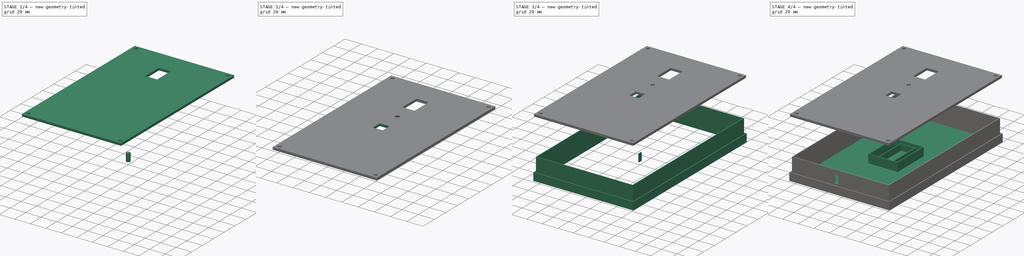
[diagram: build sequence overview — one tinted view per stage of 4, left to right]
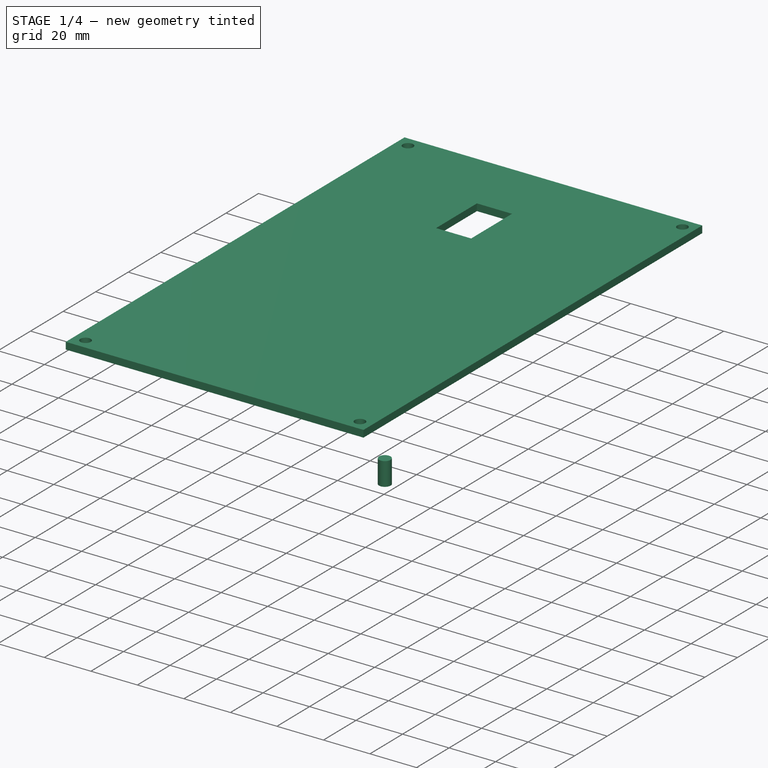
[diagram: stage 1 of 4 — iso view after this stage's code; geometry added in this stage tinted green]
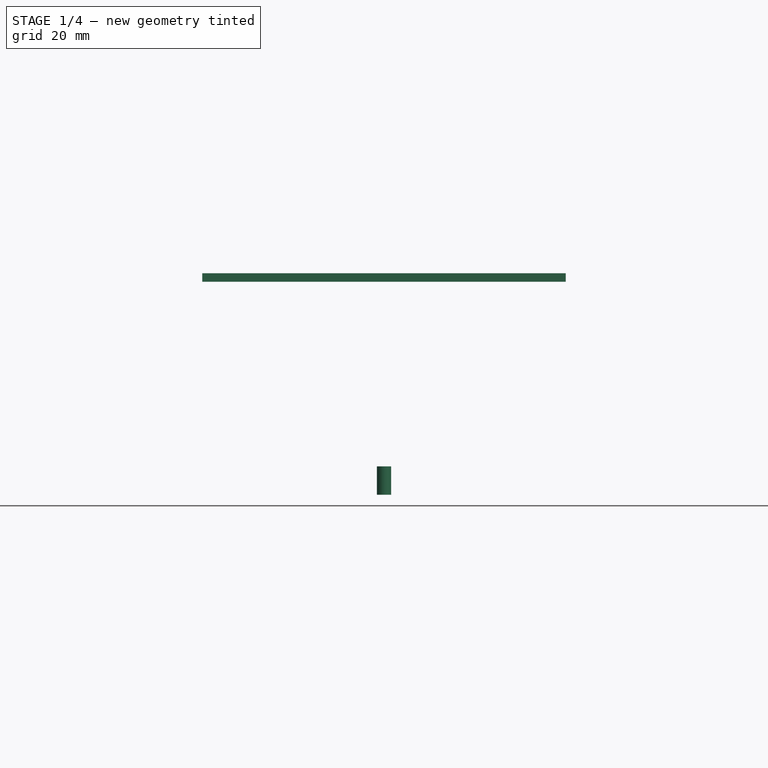
[diagram: stage 1 of 4 — front view after this stage's code; geometry added in this stage tinted green]
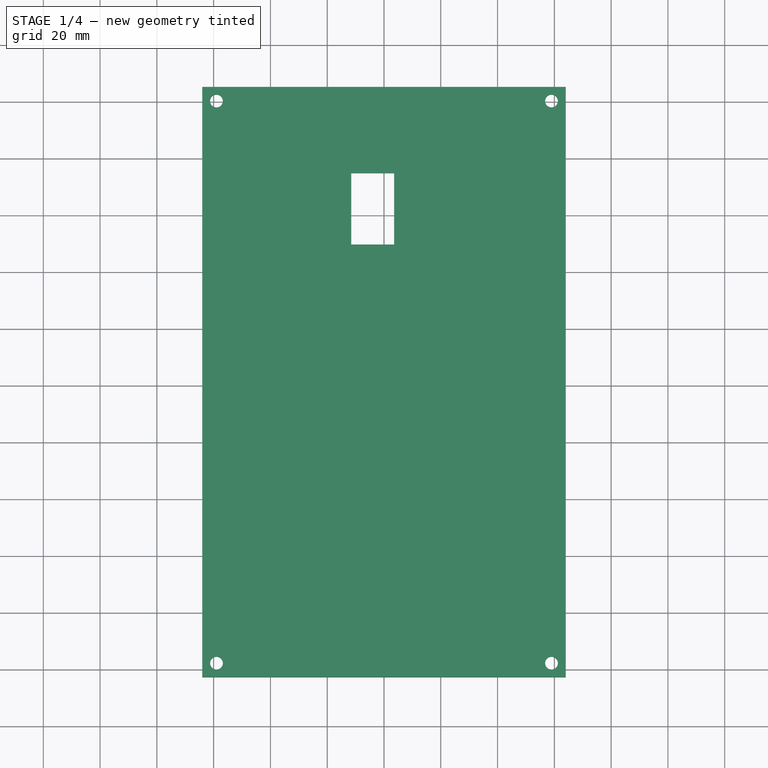
[diagram: stage 1 of 4 — top view after this stage's code; geometry added in this stage tinted green]
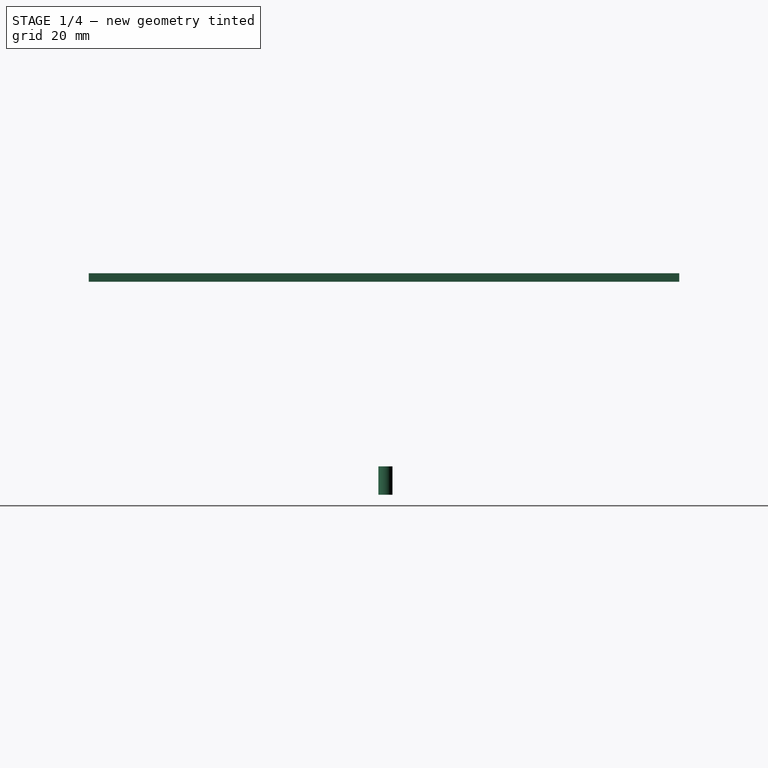
[diagram: stage 1 of 4 — right view after this stage's code; geometry added in this stage tinted green]
FCSTD DOCUMENT  (FreeCAD 0.19R24291 (Git))
Label: hw-61037992
License: All rights reserved
LicenseURL: http://en.wikipedia.org/wiki/All_rights_reserved
objects: PartDesign::Body×12, Sketcher::SketchObject×11, PartDesign::Pad×10, Part::Cut×4
note: 47 computed .brp shape members not serialized (recipe doc carries the construction recipe); baked Part::Feature solids carry a one-line shape summary decoded from their .brp

FEATURE [PartDesign::Body] Body008  label="box lid"
  Group = -> [Sketch007,Pad006]
  Origin = -> Origin008
  Placement = pos=(0,0,65) rot=(0,0,1;0rad)
  Tip = -> Pad006
FEATURE [Sketcher::SketchObject] Sketch008
  FullyConstrained = false
  MapMode = 5
  Support = -> [XY_Plane009]
  sketch-geometry (8):
    g0: LineSegment StartX=-64 StartY=104 StartZ=0 EndX=64 EndY=104 EndZ=0
    g1: LineSegment StartX=64 StartY=104 StartZ=0 EndX=64 EndY=-104 EndZ=0
    g2: LineSegment StartX=64 StartY=-104 StartZ=0 EndX=-64 EndY=-104 EndZ=0
    g3: LineSegment StartX=-64 StartY=-104 StartZ=0 EndX=-64 EndY=104 EndZ=0
    g4: Circle CenterX=-59 CenterY=99 CenterZ=0 NormalX=0 NormalY=0 NormalZ=1 AngleXU=0 Radius=2.23647
    g5: Circle CenterX=59 CenterY=99 CenterZ=0 NormalX=0 NormalY=0 NormalZ=1 AngleXU=0 Radius=2.23647
    g6: Circle CenterX=-59 CenterY=-99 CenterZ=0 NormalX=0 NormalY=0 NormalZ=1 AngleXU=0 Radius=2.23647
    g7: Circle CenterX=59 CenterY=-99 CenterZ=0 NormalX=0 NormalY=0 NormalZ=1 AngleXU=0 Radius=2.23647
  constraints (18):
    c: Coincident(g0,g1)
    c: Coincident(g1,g2)
    c: Coincident(g2,g3)
    c: Coincident(g3,g0)
    c: Horizontal(g2)
    c: Vertical(g1)
    c: DistanceX(g0,g0) = 128
    c: DistanceY(g1,g1) = 208
    c: Symmetric(g0,g0,g-2)
    c: Symmetric(g2,g0,g-1)
    c: Equal(g4,g5)
    c: DistanceX(g0,g4) = 5
    c: DistanceY(g4,g0) = 5
    c: Equal(g4,g6)
    c: Equal(g6,g7)
    c: Symmetric(g4,g5,g-2)
    c: Symmetric(g5,g7,g-1)
    c: Symmetric(g6,g7,g-2)
FEATURE [PartDesign::Pad] Pad007
  Direction = (1,1,1)
  Length = 3
  Length2 = 100
  Profile = -> Sketch008
  Type = 0
FEATURE [PartDesign::Body] Body009
  Group = -> [Sketch008,Pad007]
  Origin = -> Origin009
  Placement = pos=(0,0,75) rot=(0,0,1;0rad)
  Tip = -> Pad007
FEATURE [Sketcher::SketchObject] Sketch009
  FullyConstrained = true
  MapMode = 5
  Support = -> [XY_Plane010]
  sketch-geometry (4):
    g0: LineSegment StartX=-7.55 StartY=12.55 StartZ=0 EndX=7.55 EndY=12.55 EndZ=0
    g1: LineSegment StartX=7.55 StartY=12.55 StartZ=0 EndX=7.55 EndY=-12.55 EndZ=0
    g2: LineSegment StartX=7.55 StartY=-12.55 StartZ=0 EndX=-7.55 EndY=-12.55 EndZ=0
    g3: LineSegment StartX=-7.55 StartY=-12.55 StartZ=0 EndX=-7.55 EndY=12.55 EndZ=0
  constraints (10):
    c: Coincident(g0,g1)
    c: Coincident(g1,g2)
    c: Coincident(g2,g3)
    c: Coincident(g3,g0)
    c: Horizontal(g2)
    c: Vertical(g1)
    c: DistanceY(g1,g1) = 25.1
    c: DistanceX(g0,g0) = 15.1
    c: Symmetric(g0,g0,g-2)
    c: Symmetric(g2,g0,g-1)
FEATURE [PartDesign::Pad] Pad008
  Direction = (1,1,1)
  Length = 3
  Length2 = 100
  Profile = -> Sketch009
  Type = 0
FEATURE [PartDesign::Body] Body011
  Group = -> [Sketch010,Pad009]
  Origin = -> Origin011
  Placement = pos=(-2,-2,68) rot=(0,0,1;0rad)
  Tip = -> Pad009
FEATURE [Part::Cut] Cut001
  Base = -> Body009
  Tool = -> Body010
FEATURE [Sketcher::SketchObject] Sketch011
  FullyConstrained = true
  MapMode = 5
  Support = -> [XY_Plane012]
  sketch-geometry (1):
    g0: Circle CenterX=0 CenterY=0.5 CenterZ=0 NormalX=0 NormalY=0 NormalZ=1 AngleXU=0 Radius=2.5
  constraints (2):
    c: Diameter(g0) = 5
    c: Symmetric(g-2,g-2,g0)
FEATURE [PartDesign::Pad] Pad010
  Direction = (1,1,1)
  Length = 10
  Length2 = 100
  Profile = -> Sketch011
  Type = 0
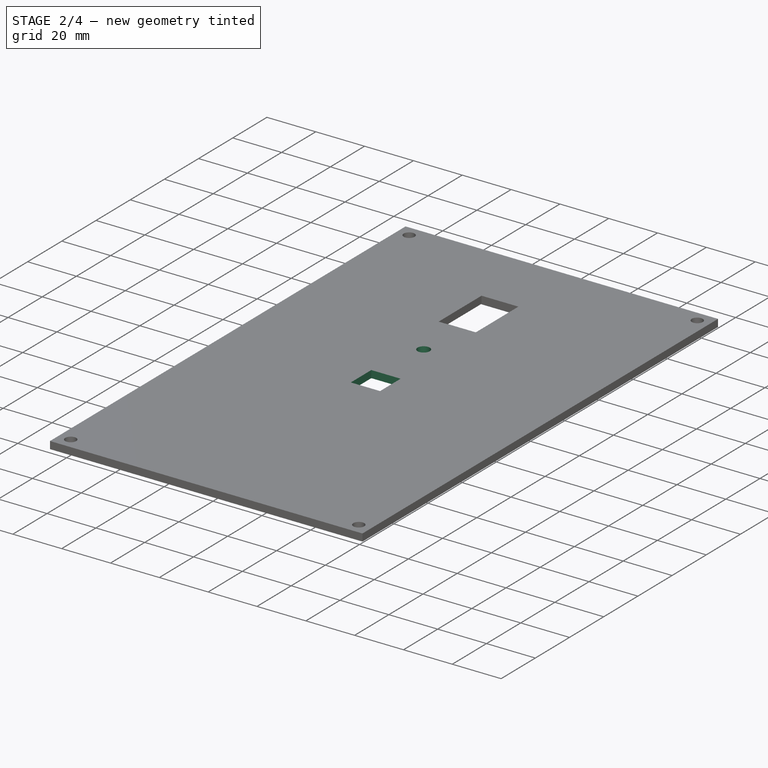
[diagram: stage 2 of 4 — iso view after this stage's code; geometry added in this stage tinted green]
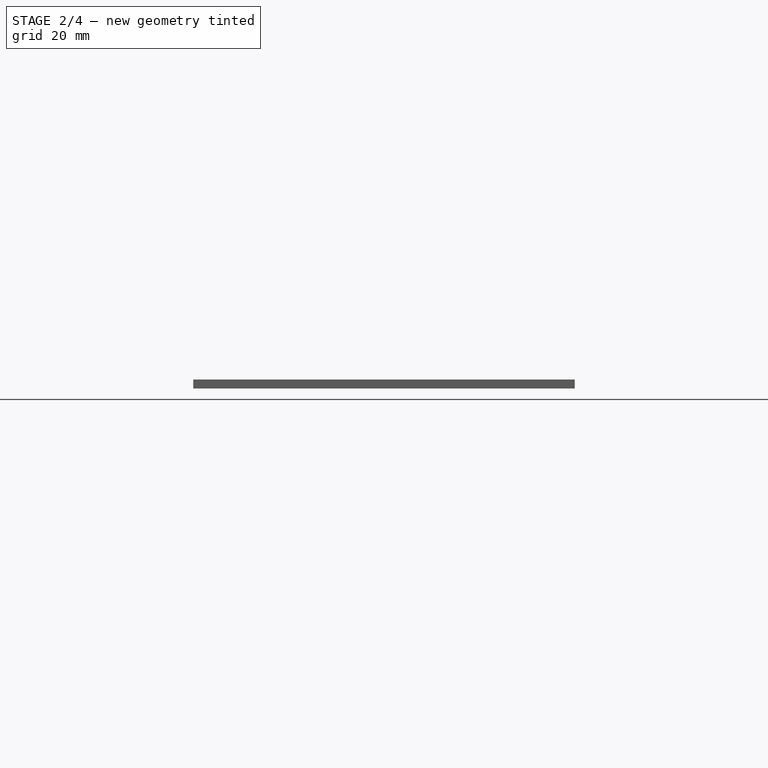
[diagram: stage 2 of 4 — front view after this stage's code; geometry added in this stage tinted green]
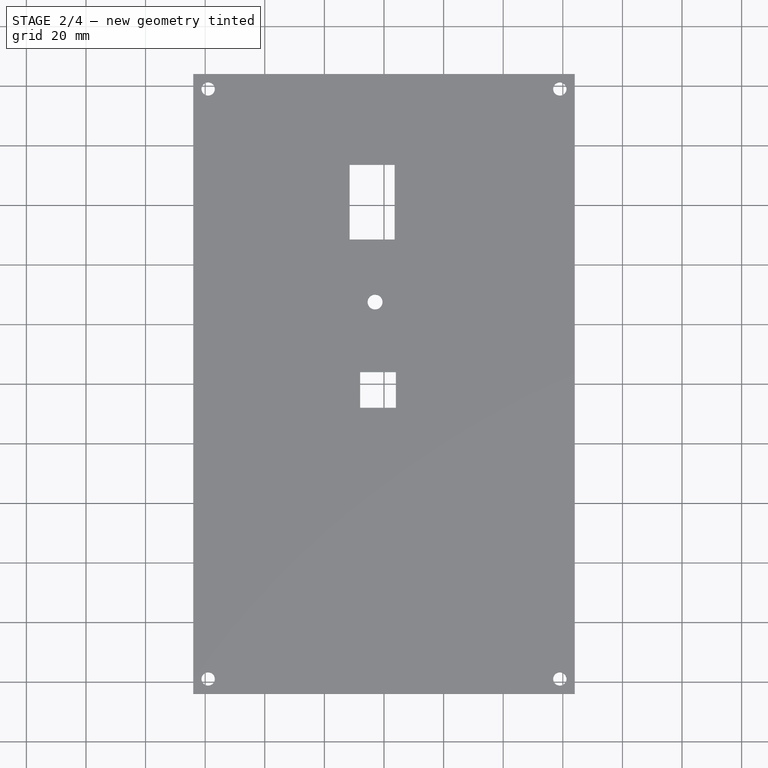
[diagram: stage 2 of 4 — top view after this stage's code; geometry added in this stage tinted green]
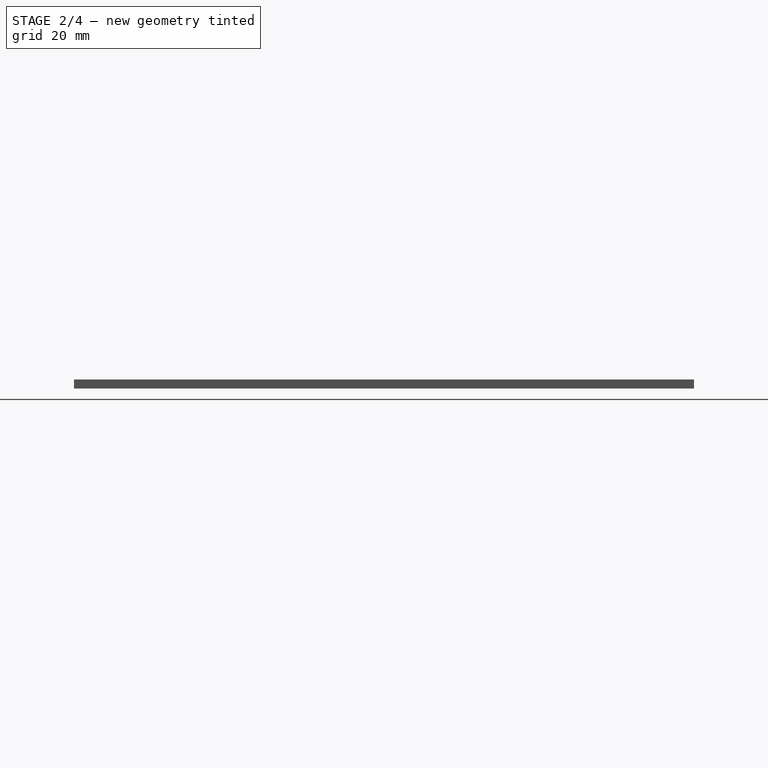
[diagram: stage 2 of 4 — right view after this stage's code; geometry added in this stage tinted green]
FEATURE [PartDesign::Body] Body010  label="dht22"
  Group = -> [Sketch009,Pad008]
  Origin = -> Origin010
  Placement = pos=(-4,61,75) rot=(0,0,1;0rad)
  Tip = -> Pad008
FEATURE [Sketcher::SketchObject] Sketch010
  FullyConstrained = true
  MapMode = 5
  Support = -> [XY_Plane011]
  sketch-geometry (4):
    g0: LineSegment StartX=-6 StartY=6 StartZ=0 EndX=6 EndY=6 EndZ=0
    g1: LineSegment StartX=6 StartY=6 StartZ=0 EndX=6 EndY=-6 EndZ=0
    g2: LineSegment StartX=6 StartY=-6 StartZ=0 EndX=-6 EndY=-6 EndZ=0
    g3: LineSegment StartX=-6 StartY=-6 StartZ=0 EndX=-6 EndY=6 EndZ=0
  constraints (10):
    c: Coincident(g0,g1)
    c: Coincident(g1,g2)
    c: Coincident(g2,g3)
    c: Coincident(g3,g0)
    c: Horizontal(g2)
    c: Vertical(g1)
    c: DistanceX(g0,g0) = 12
    c: DistanceY(g1,g1) = 12
    c: Symmetric(g0,g0,g-2)
    c: Symmetric(g2,g0,g-1)
FEATURE [PartDesign::Pad] Pad009
  Direction = (1,1,1)
  Length = 10
  Length2 = 100
  Profile = -> Sketch010
  Type = 0
FEATURE [Part::Cut] Cut002
  Base = -> Cut001
  Tool = -> Body011
FEATURE [PartDesign::Body] Body012
  Group = -> [Sketch011,Pad010]
  Origin = -> Origin012
  Placement = pos=(-3,27,68) rot=(0,0,1;0rad)
  Tip = -> Pad010
FEATURE [Part::Cut] Cut003
  Base = -> Cut002
  Tool = -> Body012
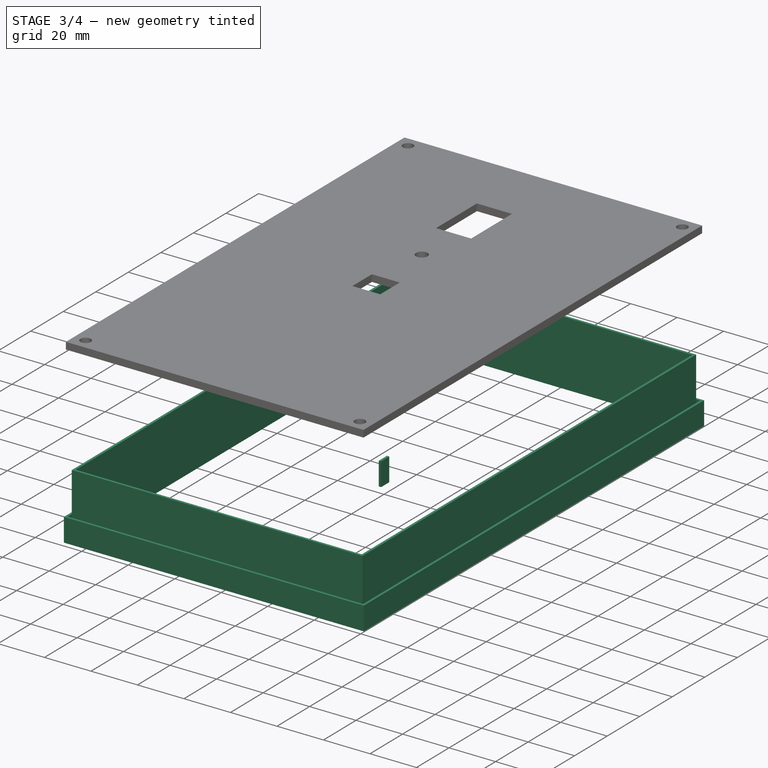
[diagram: stage 3 of 4 — iso view after this stage's code; geometry added in this stage tinted green]
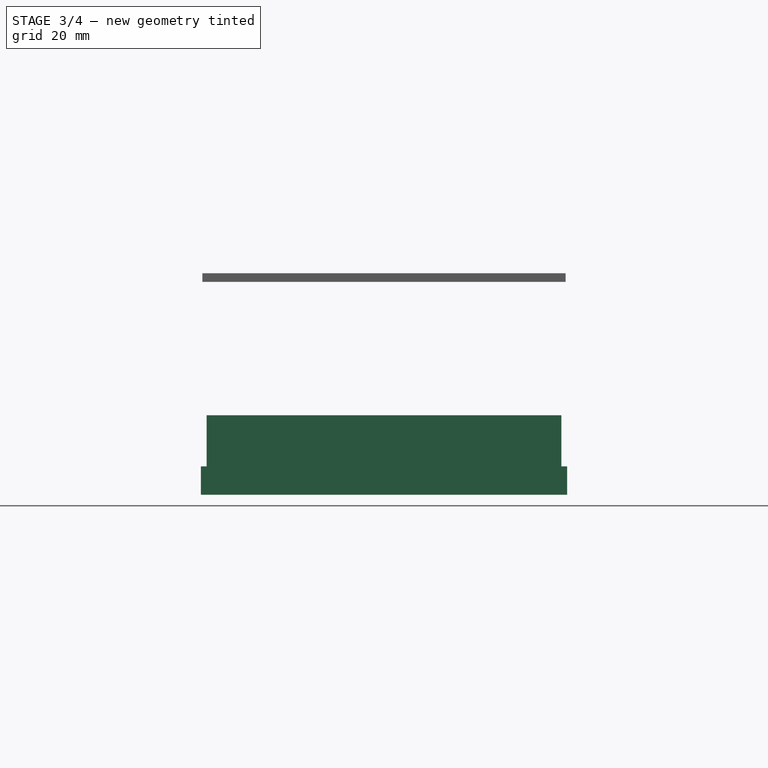
[diagram: stage 3 of 4 — front view after this stage's code; geometry added in this stage tinted green]
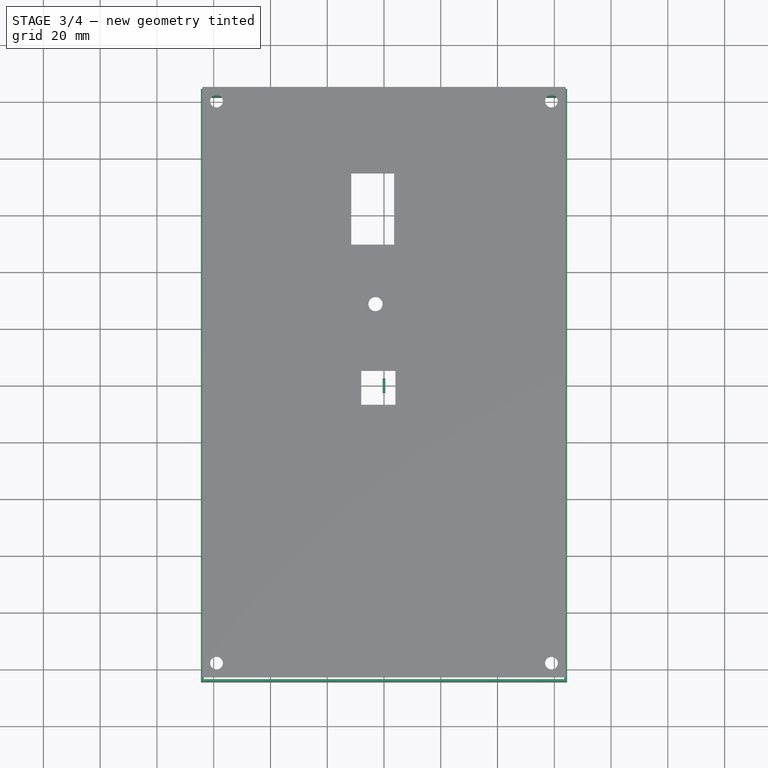
[diagram: stage 3 of 4 — top view after this stage's code; geometry added in this stage tinted green]
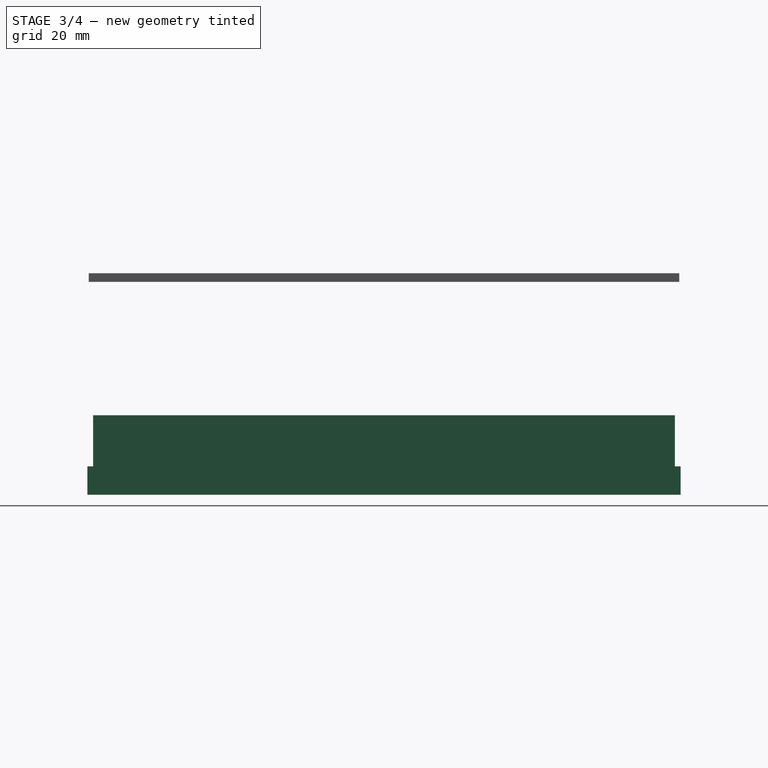
[diagram: stage 3 of 4 — right view after this stage's code; geometry added in this stage tinted green]
FEATURE [PartDesign::Body] Body004  label="relay"
  Group = -> [Sketch003,Pad002]
  Origin = -> Origin004
  Placement = pos=(49,0,0) rot=(0,0,1;0rad)
  Tip = -> Pad002
FEATURE [Sketcher::SketchObject] Sketch004
  FullyConstrained = true
  MapMode = 5
  Support = -> [XY_Plane005]
  sketch-geometry (8):
    g0: LineSegment StartX=-61.5 StartY=101.5 StartZ=0 EndX=61.5 EndY=101.5 EndZ=0
    g1: LineSegment StartX=61.5 StartY=101.5 StartZ=0 EndX=61.5 EndY=-101.5 EndZ=0
    g2: LineSegment StartX=61.5 StartY=-101.5 StartZ=0 EndX=-61.5 EndY=-101.5 EndZ=0
    g3: LineSegment StartX=-61.5 StartY=-101.5 StartZ=0 EndX=-61.5 EndY=101.5 EndZ=0
    g4: LineSegment StartX=-62.5 StartY=102.5 StartZ=0 EndX=62.5 EndY=102.5 EndZ=0
    g5: LineSegment StartX=62.5 StartY=102.5 StartZ=0 EndX=62.5 EndY=-102.5 EndZ=0
    g6: LineSegment StartX=62.5 StartY=-102.5 StartZ=0 EndX=-62.5 EndY=-102.5 EndZ=0
    g7: LineSegment StartX=-62.5 StartY=-102.5 StartZ=0 EndX=-62.5 EndY=102.5 EndZ=0
  constraints (20):
    c: Coincident(g0,g1)
    c: Coincident(g1,g2)
    c: Coincident(g2,g3)
    c: Coincident(g3,g0)
    c: Horizontal(g2)
    c: Vertical(g1)
    c: DistanceY(g1,g1) = 203
    c: DistanceX(g0,g0) = 123
    c: Symmetric(g0,g0,g-2)
    c: Symmetric(g2,g0,g-1)
    c: Coincident(g4,g5)
    c: Coincident(g5,g6)
    c: Coincident(g6,g7)
    c: Coincident(g7,g4)
    c: Horizontal(g6)
    c: Vertical(g5)
    c: DistanceY(g5,g5) = 205
    c: DistanceX(g4,g4) = 125
    c: Symmetric(g4,g4,g-2)
    c: Symmetric(g6,g4,g-1)
FEATURE [PartDesign::Pad] Pad003
  Direction = (1,1,1)
  Length = 28
  Length2 = 100
  Profile = -> Sketch004
  Type = 0
FEATURE [PartDesign::Body] Body005  label="margin"
  Group = -> [Sketch004,Pad003]
  Origin = -> Origin005
  Tip = -> Pad003
FEATURE [Sketcher::SketchObject] Sketch006
  FullyConstrained = true
  MapMode = 5
  Support = -> [XY_Plane007]
  sketch-geometry (4):
    g0: LineSegment StartX=-0.5 StartY=2.5 StartZ=0 EndX=0.5 EndY=2.5 EndZ=0
    g1: LineSegment StartX=0.5 StartY=2.5 StartZ=0 EndX=0.5 EndY=-2.5 EndZ=0
    g2: LineSegment StartX=0.5 StartY=-2.5 StartZ=0 EndX=-0.5 EndY=-2.5 EndZ=0
    g3: LineSegment StartX=-0.5 StartY=-2.5 StartZ=0 EndX=-0.5 EndY=2.5 EndZ=0
  constraints (10):
    c: Coincident(g0,g1)
    c: Coincident(g1,g2)
    c: Coincident(g2,g3)
    c: Coincident(g3,g0)
    c: Horizontal(g2)
    c: Vertical(g1)
    c: DistanceX(g0,g0) = 1
    c: DistanceY(g1,g1) = 5
    c: Symmetric(g0,g0,g-2)
    c: Symmetric(g2,g0,g-1)
FEATURE [PartDesign::Pad] Pad005
  Direction = (1,1,1)
  Length = 10
  Length2 = 100
  Profile = -> Sketch006
  Type = 0
FEATURE [Sketcher::SketchObject] Sketch007
  FullyConstrained = true
  MapMode = 5
  Support = -> [XY_Plane008]
  sketch-geometry (8):
    g0: LineSegment StartX=-63.5 StartY=103.5 StartZ=0 EndX=63.5 EndY=103.5 EndZ=0
    g1: LineSegment StartX=63.5 StartY=103.5 StartZ=0 EndX=63.5 EndY=-103.5 EndZ=0
    g2: LineSegment StartX=63.5 StartY=-103.5 StartZ=0 EndX=-63.5 EndY=-103.5 EndZ=0
    g3: LineSegment StartX=-63.5 StartY=-103.5 StartZ=0 EndX=-63.5 EndY=103.5 EndZ=0
    g4: LineSegment StartX=-64.5 StartY=104.5 StartZ=0 EndX=64.5 EndY=104.5 EndZ=0
    g5: LineSegment StartX=64.5 StartY=104.5 StartZ=0 EndX=64.5 EndY=-104.5 EndZ=0
    g6: LineSegment StartX=64.5 StartY=-104.5 StartZ=0 EndX=-64.5 EndY=-104.5 EndZ=0
    g7: LineSegment StartX=-64.5 StartY=-104.5 StartZ=0 EndX=-64.5 EndY=104.5 EndZ=0
  constraints (20):
    c: Coincident(g0,g1)
    c: Coincident(g1,g2)
    c: Coincident(g2,g3)
    c: Coincident(g3,g0)
    c: Horizontal(g2)
    c: Vertical(g3)
    c: Symmetric(g1,g0,g-1)
    c: Symmetric(g0,g0,g-2)
    c: DistanceX(g0,g0) = 127
    c: DistanceY(g1,g1) = 207
    c: Coincident(g4,g5)
    c: Coincident(g5,g6)
    c: Coincident(g6,g7)
    c: Coincident(g7,g4)
    c: Horizontal(g6)
    c: Vertical(g5)
    c: DistanceY(g5,g5) = 209
    c: DistanceX(g4,g4) = 129
    c: Symmetric(g4,g4,g-2)
    c: Symmetric(g4,g6,g-1)
FEATURE [PartDesign::Pad] Pad006
  Direction = (1,1,1)
  Length = 10
  Length2 = 100
  Profile = -> Sketch007
  Type = 0
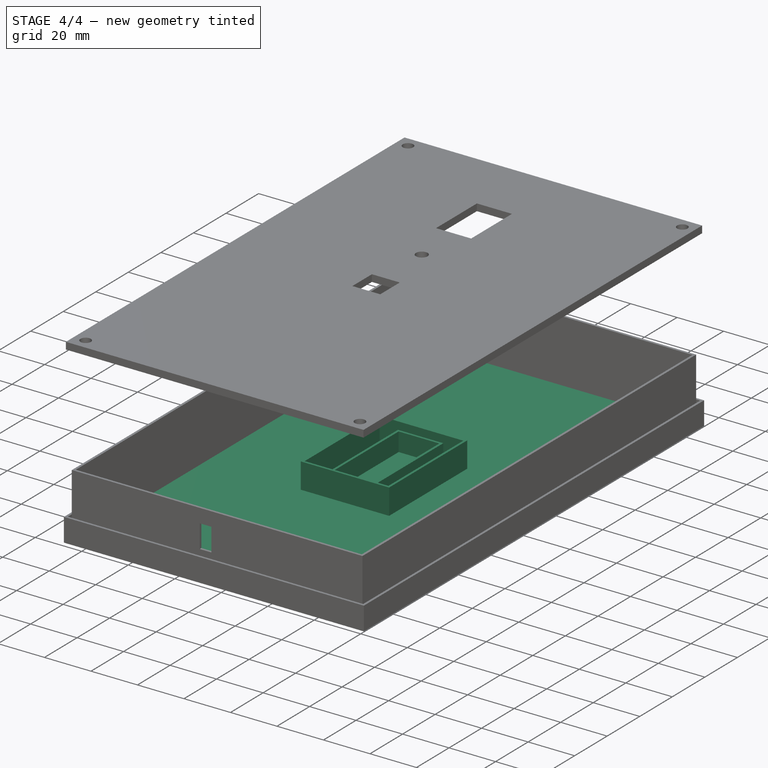
[diagram: stage 4 of 4 — iso view after this stage's code; geometry added in this stage tinted green]
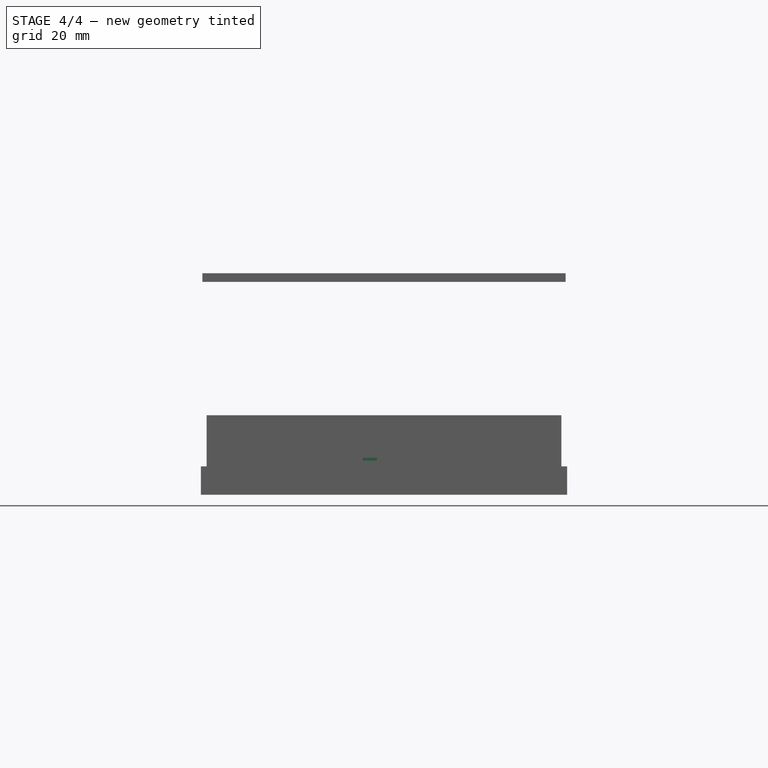
[diagram: stage 4 of 4 — front view after this stage's code; geometry added in this stage tinted green]
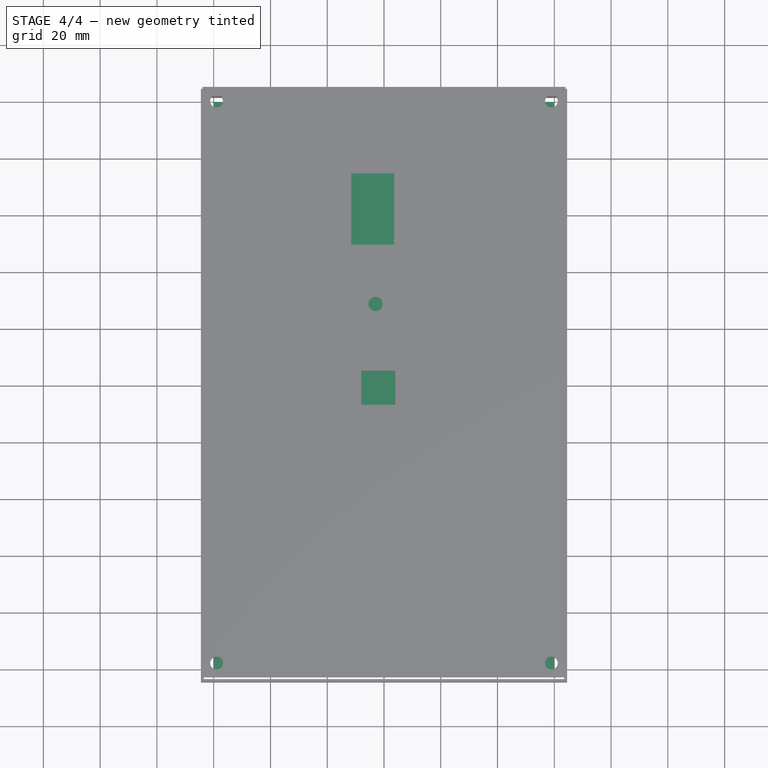
[diagram: stage 4 of 4 — top view after this stage's code; geometry added in this stage tinted green]
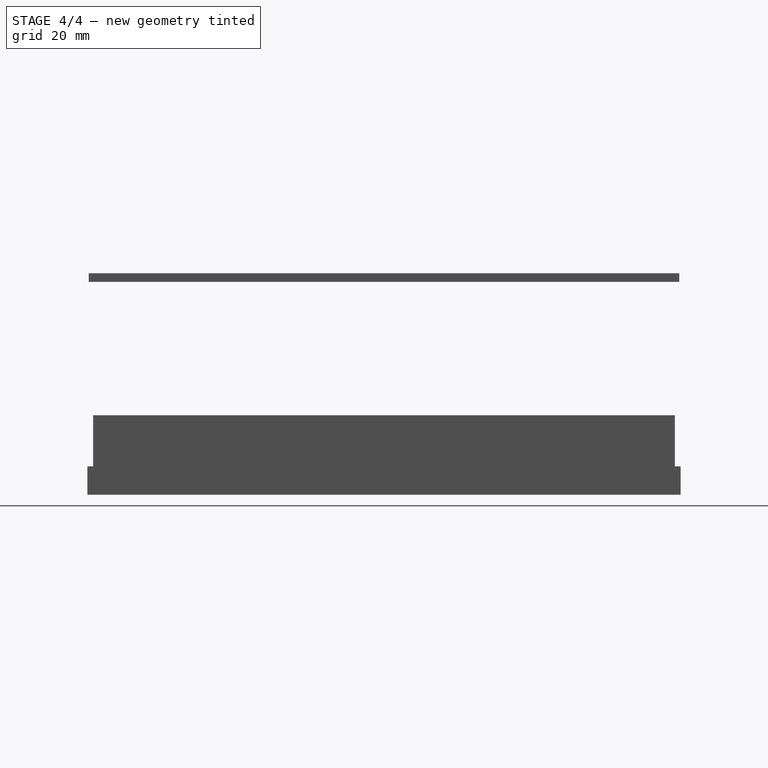
[diagram: stage 4 of 4 — right view after this stage's code; geometry added in this stage tinted green]
FEATURE [Sketcher::SketchObject] Sketch
  FullyConstrained = true
  MapMode = 5
  Support = -> [XY_Plane]
  sketch-geometry (8):
    g0: LineSegment StartX=-18 StartY=23 StartZ=0 EndX=18 EndY=23 EndZ=0
    g1: LineSegment StartX=18 StartY=23 StartZ=0 EndX=18 EndY=-23 EndZ=0
    g2: LineSegment StartX=18 StartY=-23 StartZ=0 EndX=-18 EndY=-23 EndZ=0
    g3: LineSegment StartX=-18 StartY=-23 StartZ=0 EndX=-18 EndY=23 EndZ=0
    g4: LineSegment StartX=-19 StartY=24 StartZ=0 EndX=19 EndY=24 EndZ=0
    g5: LineSegment StartX=19 StartY=24 StartZ=0 EndX=19 EndY=-24 EndZ=0
    g6: LineSegment StartX=19 StartY=-24 StartZ=0 EndX=-19 EndY=-24 EndZ=0
    g7: LineSegment StartX=-19 StartY=-24 StartZ=0 EndX=-19 EndY=24 EndZ=0
  constraints (20):
    c: Coincident(g0,g1)
    c: Coincident(g1,g2)
    c: Coincident(g2,g3)
    c: Coincident(g3,g0)
    c: Horizontal(g2)
    c: Vertical(g1)
    c: DistanceX(g0,g0) = 36
    c: DistanceY(g1,g1) = 46
    c: Symmetric(g0,g0,g-2)
    c: Symmetric(g2,g0,g-1)
    c: Coincident(g4,g5)
    c: Coincident(g5,g6)
    c: Coincident(g6,g7)
    c: Coincident(g7,g4)
    c: Horizontal(g6)
    c: Vertical(g5)
    c: DistanceX(g4,g4) = 38
    c: DistanceY(g5,g5) = 48
    c: Symmetric(g4,g4,g-2)
    c: Symmetric(g6,g4,g-1)
FEATURE [PartDesign::Pad] Pad
  Direction = (1,1,1)
  Length = 13
  Length2 = 100
  Profile = -> Sketch
  Type = 0
FEATURE [PartDesign::Body] Body
  Group = -> [Sketch,Pad]
  Origin = -> Origin
  Placement = pos=(0,75,0) rot=(0,0,1;0rad)
  Tip = -> Pad
FEATURE [Sketcher::SketchObject] Sketch001
  FullyConstrained = true
  MapMode = 5
  Support = -> [XY_Plane001]
  sketch-geometry (4):
    g0: LineSegment StartX=-60 StartY=100 StartZ=0 EndX=60 EndY=100 EndZ=0
    g1: LineSegment StartX=60 StartY=100 StartZ=0 EndX=60 EndY=-100 EndZ=0
    g2: LineSegment StartX=60 StartY=-100 StartZ=0 EndX=-60 EndY=-100 EndZ=0
    g3: LineSegment StartX=-60 StartY=-100 StartZ=0 EndX=-60 EndY=100 EndZ=0
  constraints (10):
    c: Coincident(g0,g1)
    c: Coincident(g1,g2)
    c: Coincident(g2,g3)
    c: Coincident(g3,g0)
    c: Horizontal(g2)
    c: Vertical(g1)
    c: DistanceX(g0,g0) = 120
    c: DistanceY(g3,g3) = 200
    c: Symmetric(g0,g0,g-2)
    c: Symmetric(g2,g0,g-1)
FEATURE [PartDesign::Pad] Pad001
  Direction = (1,1,1)
  Length = 2
  Length2 = 100
  Profile = -> Sketch001
  Type = 0
FEATURE [PartDesign::Body] Body001  label="flor"
  Group = -> [Sketch001,Pad001]
  Origin = -> Origin001
  Tip = -> Pad001
FEATURE [PartDesign::Body] Body002  label="ff"
  Origin = -> Origin002
FEATURE [Sketcher::SketchObject] Sketch002
  FullyConstrained = true
  MapMode = 5
  Support = -> [XY_Plane003]
  sketch-geometry (4):
    g0: LineSegment StartX=-8.75 StartY=21.5 StartZ=0 EndX=8.75 EndY=21.5 EndZ=0
    g1: LineSegment StartX=8.75 StartY=21.5 StartZ=0 EndX=8.75 EndY=-21.5 EndZ=0
    g2: LineSegment StartX=8.75 StartY=-21.5 StartZ=0 EndX=-8.75 EndY=-21.5 EndZ=0
    g3: LineSegment StartX=-8.75 StartY=-21.5 StartZ=0 EndX=-8.75 EndY=21.5 EndZ=0
  constraints (10):
    c: Coincident(g0,g1)
    c: Coincident(g1,g2)
    c: Coincident(g2,g3)
    c: Coincident(g3,g0)
    c: Horizontal(g2)
    c: Vertical(g1)
    c: DistanceY(g1,g1) = 43
    c: DistanceX(g0,g0) = 17.5
    c: Symmetric(g0,g0,g-2)
    c: Symmetric(g2,g0,g-1)
FEATURE [PartDesign::Body] Body003
  Group = -> [Sketch002]
  Origin = -> Origin003
FEATURE [Sketcher::SketchObject] Sketch003
  FullyConstrained = true
  MapMode = 5
  Support = -> [XY_Plane004]
  sketch-geometry (8):
    g0: LineSegment StartX=-8.75 StartY=21.5 StartZ=0 EndX=8.75 EndY=21.5 EndZ=0
    g1: LineSegment StartX=8.75 StartY=21.5 StartZ=0 EndX=8.75 EndY=-21.5 EndZ=0
    g2: LineSegment StartX=8.75 StartY=-21.5 StartZ=0 EndX=-8.75 EndY=-21.5 EndZ=0
    g3: LineSegment StartX=-8.75 StartY=-21.5 StartZ=0 EndX=-8.75 EndY=21.5 EndZ=0
    g4: LineSegment StartX=-9.75 StartY=22.5 StartZ=0 EndX=9.75 EndY=22.5 EndZ=0
    g5: LineSegment StartX=9.75 StartY=22.5 StartZ=0 EndX=9.75 EndY=-22.5 EndZ=0
    g6: LineSegment StartX=9.75 StartY=-22.5 StartZ=0 EndX=-9.75 EndY=-22.5 EndZ=0
    g7: LineSegment StartX=-9.75 StartY=-22.5 StartZ=0 EndX=-9.75 EndY=22.5 EndZ=0
  constraints (20):
    c: Coincident(g0,g1)
    c: Coincident(g1,g2)
    c: Coincident(g2,g3)
    c: Coincident(g3,g0)
    c: Horizontal(g2)
    c: Vertical(g1)
    c: DistanceY(g1,g1) = 43
    c: DistanceX(g0,g0) = 17.5
    c: Symmetric(g0,g0,g-2)
    c: Symmetric(g2,g0,g-1)
    c: Coincident(g4,g5)
    c: Coincident(g5,g6)
    c: Coincident(g6,g7)
    c: Coincident(g7,g4)
    c: Horizontal(g6)
    c: Vertical(g5)
    c: DistanceX(g4,g4) = 19.5
    c: DistanceY(g5,g5) = 45
    c: Symmetric(g4,g4,g-2)
    c: Symmetric(g6,g4,g-1)
FEATURE [PartDesign::Pad] Pad002
  Direction = (1,1,1)
  Length = 10
  Length2 = 100
  Profile = -> Sketch003
  Type = 0
FEATURE [PartDesign::Body] Body007
  Group = -> [Sketch006,Pad005]
  Origin = -> Origin007
  Placement = pos=(-5,-102,12) rot=(0,0,1;1.5708rad)
  Tip = -> Pad005
FEATURE [Part::Cut] Cut
  Base = -> Body005
  Tool = -> Body007
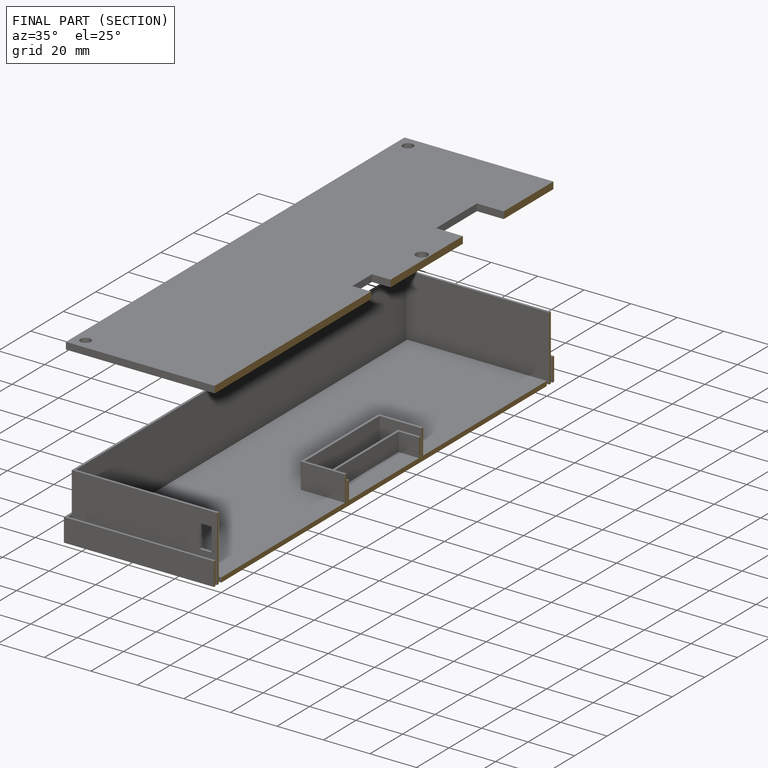
[diagram: finished part — half-section view (interior)]
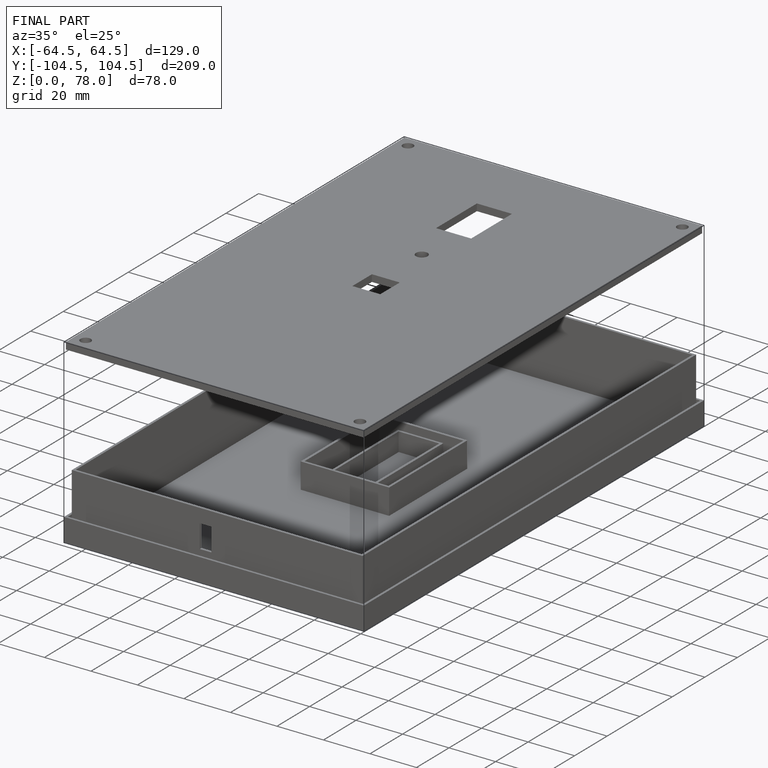
[diagram: finished part — iso view with bounding-box wireframe]
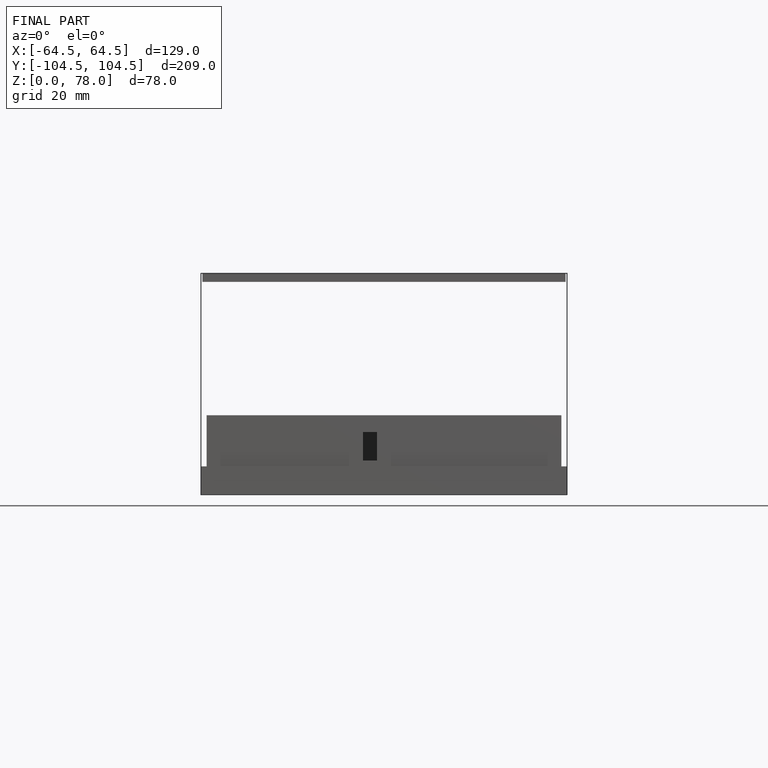
[diagram: finished part — front view with bounding-box wireframe]
